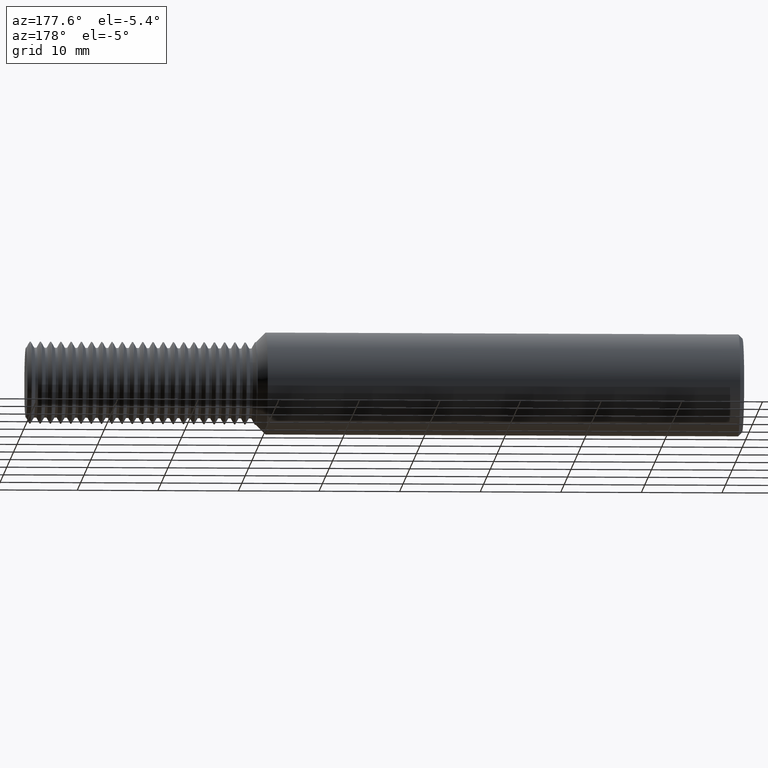
[diagram: clean part render]
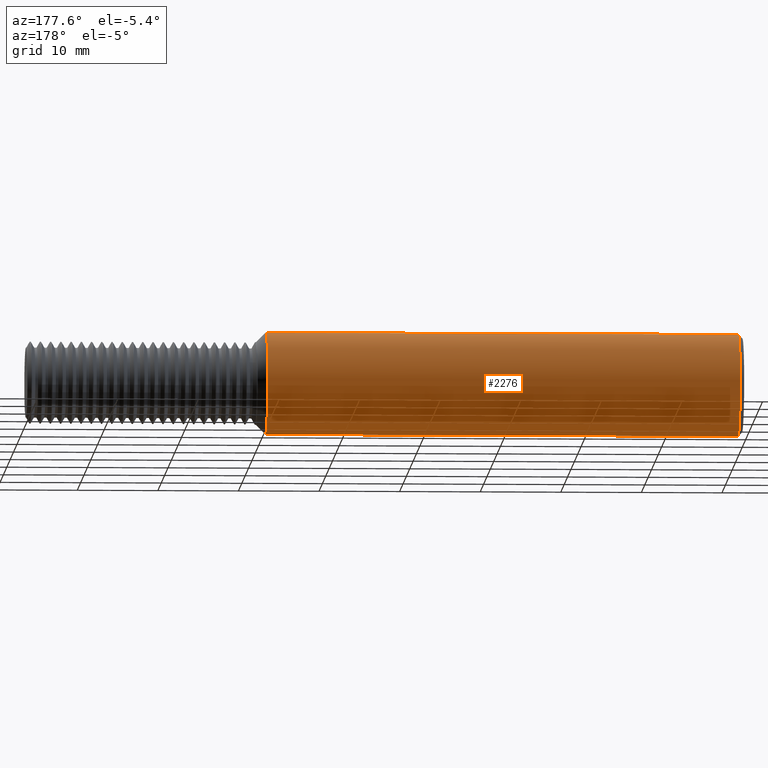
[diagram: same view with one face highlighted and labeled with its STEP entity id]
A machine part, auxiliary view. The second image highlights one B-rep face of the part: STEP entity #2276.
In plain terms, the highlighted cylindrical surface (partial cylindrical patch) has radius 6.3462 mm, axis along (-1, -0, -0).
Its self-contained STEP definition (entity closure, byte-faithful):
#144 = ORIENTED_EDGE ( 'NONE', *, *, #2287, .T. ) ;
#153 = CARTESIAN_POINT ( 'NONE',  ( 2.328149999999999942, 3.059780027669661931E-17, -0.2498499999999999888 ) ) ;
#232 = VERTEX_POINT ( 'NONE', #2659 ) ;
#236 = AXIS2_PLACEMENT_3D ( 'NONE', #3699, #1073, #2977 ) ;
#394 = DIRECTION ( 'NONE',  ( -1.000000000000000000, -0.000000000000000000, -0.000000000000000000 ) ) ;
#463 = ORIENTED_EDGE ( 'NONE', *, *, #2759, .T. ) ;
#571 = ORIENTED_EDGE ( 'NONE', *, *, #2402, .T. ) ;
#583 = CARTESIAN_POINT ( 'NONE',  ( 0.000000000000000000, 0.000000000000000000, 0.2498499999999999888 ) ) ;
#627 = LINE ( 'NONE', #583, #4074 ) ;
#679 = CIRCLE ( 'NONE', #839, 0.2498499999999999888 ) ;
#717 = CARTESIAN_POINT ( 'NONE',  ( 0.02000000000000009409, 0.000000000000000000, 0.000000000000000000 ) ) ;
#839 = AXIS2_PLACEMENT_3D ( 'NONE', #717, #3275, #3635 ) ;
#853 = CARTESIAN_POINT ( 'NONE',  ( 2.328149999999999942, 0.000000000000000000, 0.000000000000000000 ) ) ;
#895 = EDGE_CURVE ( 'NONE', #232, #1049, #627, .T. ) ;
#1049 = VERTEX_POINT ( 'NONE', #2262 ) ;
#1073 = DIRECTION ( 'NONE',  ( -1.000000000000000000, -0.000000000000000000, -0.000000000000000000 ) ) ;
#1744 = DIRECTION ( 'NONE',  ( -1.000000000000000000, -0.000000000000000000, -0.000000000000000000 ) ) ;
#2213 = CYLINDRICAL_SURFACE ( 'NONE', #236, 0.2498499999999999888 ) ;
#2262 = CARTESIAN_POINT ( 'NONE',  ( 0.02000000000000009409, 3.059780027669661931E-17, 0.2498499999999999888 ) ) ;
#2276 = ADVANCED_FACE ( 'NONE', ( #3745 ), #2213, .T. ) ;
#2287 = EDGE_CURVE ( 'NONE', #2342, #2815, #2604, .T. ) ;
#2294 = CIRCLE ( 'NONE', #3536, 0.2498499999999999888 ) ;
#2342 = VERTEX_POINT ( 'NONE', #153 ) ;
#2402 = EDGE_CURVE ( 'NONE', #232, #2342, #2294, .T. ) ;
#2604 = LINE ( 'NONE', #4085, #3216 ) ;
#2659 = CARTESIAN_POINT ( 'NONE',  ( 2.328149999999999942, 0.000000000000000000, 0.2498499999999999888 ) ) ;
#2759 = EDGE_CURVE ( 'NONE', #2815, #1049, #679, .T. ) ;
#2765 = ORIENTED_EDGE ( 'NONE', *, *, #895, .F. ) ;
#2815 = VERTEX_POINT ( 'NONE', #4459 ) ;
#2977 = DIRECTION ( 'NONE',  ( 0.000000000000000000, 0.000000000000000000, 1.000000000000000000 ) ) ;
#3216 = VECTOR ( 'NONE', #394, 39.37007874015748143 ) ;
#3275 = DIRECTION ( 'NONE',  ( 1.000000000000000000, 0.000000000000000000, 0.000000000000000000 ) ) ;
#3409 = EDGE_LOOP ( 'NONE', ( #571, #144, #463, #2765 ) ) ;
#3430 = DIRECTION ( 'NONE',  ( -1.000000000000000000, -0.000000000000000000, -0.000000000000000000 ) ) ;
#3536 = AXIS2_PLACEMENT_3D ( 'NONE', #853, #3430, #4593 ) ;
#3635 = DIRECTION ( 'NONE',  ( 0.000000000000000000, 0.000000000000000000, -1.000000000000000000 ) ) ;
#3699 = CARTESIAN_POINT ( 'NONE',  ( 0.000000000000000000, 0.000000000000000000, 0.000000000000000000 ) ) ;
#3745 = FACE_OUTER_BOUND ( 'NONE', #3409, .T. ) ;
#4074 = VECTOR ( 'NONE', #1744, 39.37007874015748143 ) ;
#4085 = CARTESIAN_POINT ( 'NONE',  ( 0.000000000000000000, 3.059780027669661931E-17, -0.2498499999999999888 ) ) ;
#4459 = CARTESIAN_POINT ( 'NONE',  ( 0.02000000000000009409, 0.000000000000000000, -0.2498499999999999888 ) ) ;
#4593 = DIRECTION ( 'NONE',  ( 0.000000000000000000, 0.000000000000000000, 1.000000000000000000 ) ) ;